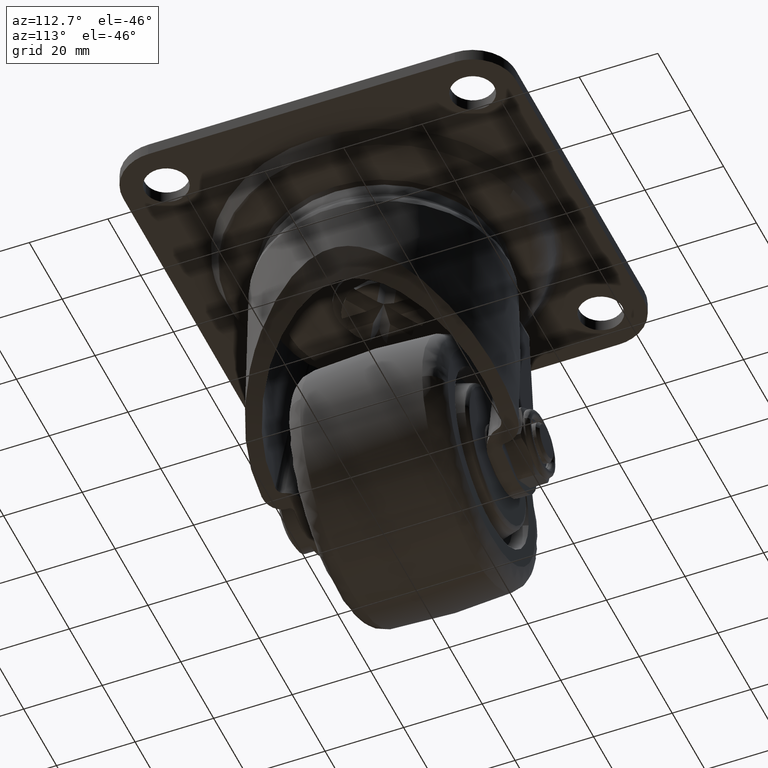
[diagram: clean part render]
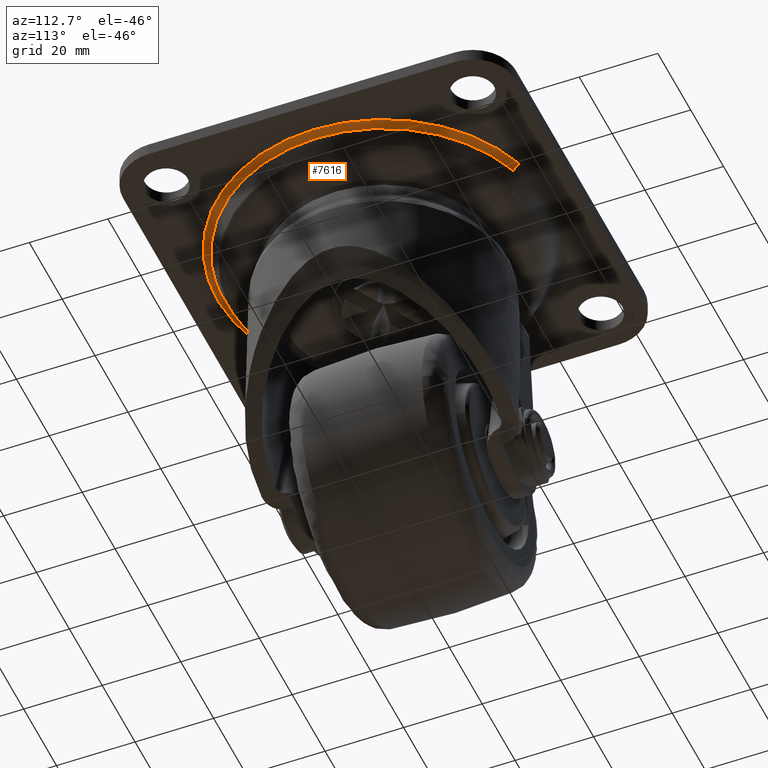
[diagram: same view with one face highlighted and labeled with its STEP entity id]
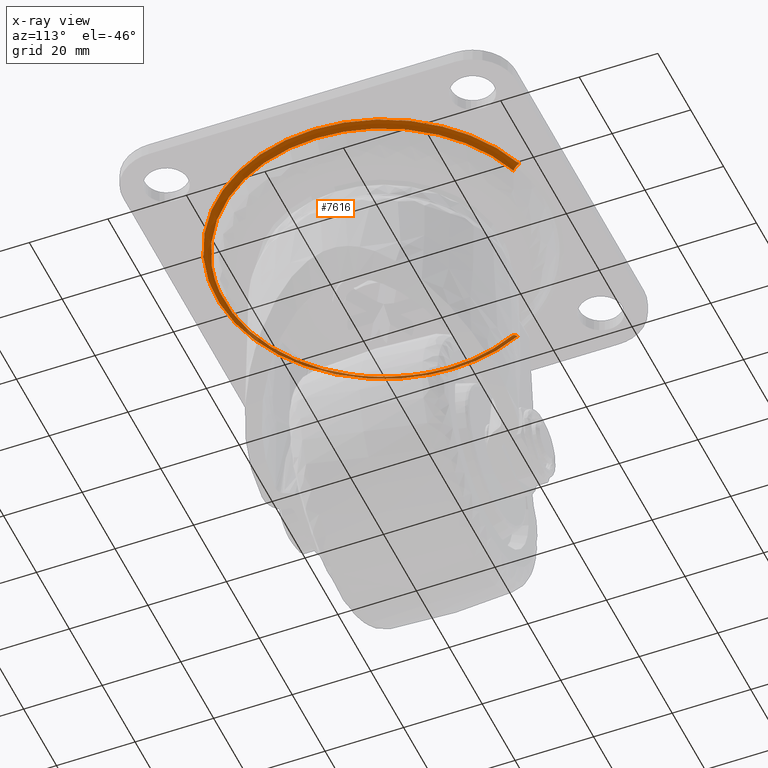
[diagram: x-ray of the same camera — body ghosted, the highlighted face saturated]
A machine part, auxiliary view. The second image highlights one B-rep face of the part: STEP entity #7616.
The next image is the same camera in x-ray: the body ghosted, the highlighted face saturated — about 17% of this face is hidden behind the body in this view.
In plain terms, the highlighted face is a freeform B-spline surface patch.
Its self-contained STEP definition (entity closure, byte-faithful):
#5786=CARTESIAN_POINT('',(3.184360529721399,-40.461136844316677,-4.345675039741233));
#5787=VERTEX_POINT('',#5786);
#5793=CARTESIAN_POINT('',(-37.739710467579357,-14.931778210949810,-4.345675039742618));
#5794=VERTEX_POINT('',#5793);
#5795=CARTESIAN_POINT('',(3.184360529721399,-40.461136844316677,-4.345675039741233));
#5796=CARTESIAN_POINT('',(1.594638133456213,-40.586250710279998,-4.345675039742931));
#5797=CARTESIAN_POINT('',(0.0,-40.586250710279998,-4.345675039742931));
#5798=CARTESIAN_POINT('',(-27.589476437351475,-40.586250710280005,-4.345675039742930));
#5799=CARTESIAN_POINT('',(-37.739710467579364,-14.931778210949812,-4.345675039742617));
#5807=(BOUNDED_CURVE()B_SPLINE_CURVE(2,(#5795,#5796,#5797,#5798,#5799),.UNSPECIFIED.,.F.,.U.)B_SPLINE_CURVE_WITH_KNOTS((3,2,3),(0.736331300632689,0.750000000000000,0.937532549939446),.UNSPECIFIED.)CURVE()GEOMETRIC_REPRESENTATION_ITEM()RATIONAL_B_SPLINE_CURVE((0.969723356171653,0.983986122581260,1.0,0.780291951263764,0.890203187501340))REPRESENTATION_ITEM(''));
#5808=EDGE_CURVE('',#5787,#5794,#5807,.T.);
#5860=CARTESIAN_POINT('',(-40.586250710279998,0.0,-4.345675039742931));
#5861=VERTEX_POINT('',#5860);
#5862=CARTESIAN_POINT('',(-37.739710467579357,-14.931778210949812,-4.345675039742618));
#5863=CARTESIAN_POINT('',(-40.586250710279998,-7.737216178475551,-4.345675039742932));
#5864=CARTESIAN_POINT('',(-40.586250710279998,0.0,-4.345675039742931));
#5872=(BOUNDED_CURVE()B_SPLINE_CURVE(2,(#5862,#5863,#5864),.UNSPECIFIED.,.F.,.U.)B_SPLINE_CURVE_WITH_KNOTS((3,3),(0.937532549939447,1.0),.UNSPECIFIED.)CURVE()GEOMETRIC_REPRESENTATION_ITEM()RATIONAL_B_SPLINE_CURVE((0.890203187501341,0.926814829922784,1.0))REPRESENTATION_ITEM(''));
#5873=EDGE_CURVE('',#5794,#5861,#5872,.T.);
#5875=CARTESIAN_POINT('',(-36.723537601635847,17.280785075132290,-4.345675037813947));
#5876=VERTEX_POINT('',#5875);
#5877=CARTESIAN_POINT('',(-40.586250710279998,0.0,-4.345675039742931));
#5878=CARTESIAN_POINT('',(-40.586250710279998,9.072101875295861,-4.345675039742931));
#5879=CARTESIAN_POINT('',(-36.723537601635861,17.280785075132297,-4.345675037813947));
#5887=(BOUNDED_CURVE()B_SPLINE_CURVE(2,(#5877,#5878,#5879),.UNSPECIFIED.,.F.,.U.)B_SPLINE_CURVE_WITH_KNOTS((3,3),(0.0,0.072331535363854),.UNSPECIFIED.)CURVE()GEOMETRIC_REPRESENTATION_ITEM()RATIONAL_B_SPLINE_CURVE((1.0,0.915258335142247,0.879552628112097))REPRESENTATION_ITEM(''));
#5888=EDGE_CURVE('',#5861,#5876,#5887,.T.);
#5890=CARTESIAN_POINT('',(12.924949974831859,38.473229847153888,-4.345675039582929));
#5891=VERTEX_POINT('',#5890);
#5907=CARTESIAN_POINT('',(40.586250710279998,0.0,-4.345675039742931));
#5908=VERTEX_POINT('',#5907);
#5909=CARTESIAN_POINT('',(12.924949974831856,38.473229847153888,-4.345675039582929));
#5910=CARTESIAN_POINT('',(40.586250710279998,29.180510476621155,-4.345675039742931));
#5911=CARTESIAN_POINT('',(40.586250710279998,0.0,-4.345675039742931));
#5919=(BOUNDED_CURVE()B_SPLINE_CURVE(2,(#5909,#5910,#5911),.UNSPECIFIED.,.F.,.U.)B_SPLINE_CURVE_WITH_KNOTS((3,3),(0.304134442289154,0.500000000000000),.UNSPECIFIED.)CURVE()GEOMETRIC_REPRESENTATION_ITEM()RATIONAL_B_SPLINE_CURVE((0.900621820758409,0.770529225389513,1.0))REPRESENTATION_ITEM(''));
#5920=EDGE_CURVE('',#5891,#5908,#5919,.T.);
#5922=CARTESIAN_POINT('',(40.586250710279998,0.0,-4.345675039742931));
#5923=CARTESIAN_POINT('',(40.586250710279984,-37.517544248621746,-4.345675039742932));
#5924=CARTESIAN_POINT('',(3.184360529721399,-40.461136844316677,-4.345675039741233));
#5932=(BOUNDED_CURVE()B_SPLINE_CURVE(2,(#5922,#5923,#5924),.UNSPECIFIED.,.F.,.U.)B_SPLINE_CURVE_WITH_KNOTS((3,3),(0.500000000000000,0.736331300632688),.UNSPECIFIED.)CURVE()GEOMETRIC_REPRESENTATION_ITEM()RATIONAL_B_SPLINE_CURVE((1.0,0.723120658605289,0.969723356171652))REPRESENTATION_ITEM(''));
#5933=EDGE_CURVE('',#5908,#5787,#5932,.T.);
#7499=CARTESIAN_POINT('',(12.911361640842289,38.432767590727636,-4.442584649837850));
#7500=CARTESIAN_POINT('',(15.137609394002512,37.684866993267164,-4.442584649837849));
#7501=CARTESIAN_POINT('',(17.262611544688397,36.684916883655177,-4.442584649837849));
#7502=CARTESIAN_POINT('',(53.947528428343588,19.422305338966794,-4.442584649837850));
#7503=CARTESIAN_POINT('',(36.684916883655177,-17.262611544688397,-4.442584649837849));
#7504=CARTESIAN_POINT('',(19.422305338966794,-53.947528428343588,-4.442584649837850));
#7505=CARTESIAN_POINT('',(-17.262611544688397,-36.684916883655198,-4.442584649837849));
#7506=CARTESIAN_POINT('',(-53.947528428343588,-19.422305338966794,-4.442584649837850));
#7507=CARTESIAN_POINT('',(-36.684916883655198,17.262611544688387,-4.442584649837849));
#7508=CARTESIAN_POINT('',(13.082746214018513,38.942921643626420,-3.127356913114888));
#7509=CARTESIAN_POINT('',(15.338545034802220,38.185093462364996,-3.127356913114887));
#7510=CARTESIAN_POINT('',(17.491754325581045,37.171870080150107,-3.127356913114887));
#7511=CARTESIAN_POINT('',(54.663624405731149,19.680115754569073,-3.127356913114888));
#7512=CARTESIAN_POINT('',(37.171870080150107,-17.491754325581045,-3.127356913114887));
#7513=CARTESIAN_POINT('',(19.680115754569073,-54.663624405731149,-3.127356913114888));
#7514=CARTESIAN_POINT('',(-17.491754325581045,-37.171870080150107,-3.127356913114887));
#7515=CARTESIAN_POINT('',(-54.663624405731149,-19.680115754569073,-3.127356913114888));
#7516=CARTESIAN_POINT('',(-37.171870080150107,17.491754325581031,-3.127356913114887));
#7517=CARTESIAN_POINT('',(13.534658132544960,40.288110959776169,-3.202823135145509));
#7518=CARTESIAN_POINT('',(15.868378083665794,39.504105431518568,-3.202823135145508));
#7519=CARTESIAN_POINT('',(18.095964796865463,38.455882690983799,-3.202823135145509));
#7520=CARTESIAN_POINT('',(56.551847487849265,20.359917894118340,-3.202823135145508));
#7521=CARTESIAN_POINT('',(38.455882690983799,-18.095964796865463,-3.202823135145509));
#7522=CARTESIAN_POINT('',(20.359917894118340,-56.551847487849265,-3.202823135145508));
#7523=CARTESIAN_POINT('',(-18.095964796865463,-38.455882690983813,-3.202823135145509));
#7524=CARTESIAN_POINT('',(-56.551847487849265,-20.359917894118340,-3.202823135145508));
#7525=CARTESIAN_POINT('',(-38.455882690983813,18.095964796865463,-3.202823135145509));
#7533=(BOUNDED_SURFACE()B_SPLINE_SURFACE(2,2,((#7499,#7508,#7517),(#7500,#7509,#7518),(#7501,#7510,#7519),(#7502,#7511,#7520),(#7503,#7512,#7521),(#7504,#7513,#7522),(#7505,#7514,#7523),(#7506,#7515,#7524),(#7507,#7516,#7525)),.UNSPECIFIED.,.F.,.F.,.U.)B_SPLINE_SURFACE_WITH_KNOTS((3,2,2,2,3),(3,3),(0.0,5.633406447499186,76.051054196741092,146.468701945983010,216.886349695224910),(0.0,2.552755834248825),.UNSPECIFIED.)GEOMETRIC_REPRESENTATION_ITEM()RATIONAL_B_SPLINE_SURFACE(((0.882743010079175,0.718345369103634,0.879689486812176),(0.900900351951463,0.733121178484464,0.897784020069453),(0.922516231206186,0.750711424552048,0.919325127177030),(0.652317482840551,0.530833139014967,0.650061031542063),(0.922516231206186,0.750711424552048,0.919325127177030),(0.652317482840551,0.530833139014967,0.650061031542063),(0.922516231206186,0.750711424552048,0.919325127177030),(0.652317482840551,0.530833139014967,0.650061031542063),(0.922516231206186,0.750711424552048,0.919325127177030)))REPRESENTATION_ITEM('')SURFACE());
#7534=ORIENTED_EDGE('',*,*,#5920,.F.);
#7535=CARTESIAN_POINT('',(13.500830320803569,40.187431987780762,-3.200000500000001));
#7536=VERTEX_POINT('',#7535);
#7537=CARTESIAN_POINT('',(12.924949974831851,38.473229847153888,-4.345675039582929));
#7538=CARTESIAN_POINT('',(13.097316248500098,38.986306282867474,-3.200001000543467));
#7539=CARTESIAN_POINT('',(13.500830320803566,40.187431987780755,-3.200000500000001));
#7547=(BOUNDED_CURVE()B_SPLINE_CURVE(2,(#7537,#7538,#7539),.UNSPECIFIED.,.F.,.U.)B_SPLINE_CURVE_WITH_KNOTS((3,3),(-1.661306528936772,-0.352191795763833),.UNSPECIFIED.)CURVE()GEOMETRIC_REPRESENTATION_ITEM()RATIONAL_B_SPLINE_CURVE((0.868483052277219,0.732466660015855,0.865706740012012))REPRESENTATION_ITEM(''));
#7548=EDGE_CURVE('',#5891,#7536,#7547,.T.);
#7549=ORIENTED_EDGE('',*,*,#7548,.T.);
#7550=CARTESIAN_POINT('',(42.394599999999997,0.0,-3.200000000000000));
#7551=VERTEX_POINT('',#7550);
#7552=CARTESIAN_POINT('',(13.500830320803567,40.187431987780755,-3.200000500000000));
#7553=CARTESIAN_POINT('',(42.394600000000004,30.480668891590831,-3.200000000000000));
#7554=CARTESIAN_POINT('',(42.394599999999997,0.0,-3.200000000000000));
#7562=(BOUNDED_CURVE()B_SPLINE_CURVE(2,(#7552,#7553,#7554),.UNSPECIFIED.,.F.,.U.)B_SPLINE_CURVE_WITH_KNOTS((3,3),(0.304134442289279,0.500000000000000),.UNSPECIFIED.)CURVE()GEOMETRIC_REPRESENTATION_ITEM()RATIONAL_B_SPLINE_CURVE((0.900621820758243,0.770529225389660,1.0))REPRESENTATION_ITEM(''));
#7563=EDGE_CURVE('',#7536,#7551,#7562,.T.);
#7564=ORIENTED_EDGE('',*,*,#7563,.T.);
#7565=CARTESIAN_POINT('',(-42.394599999999997,0.0,-3.200000000000000));
#7566=VERTEX_POINT('',#7565);
#7567=CARTESIAN_POINT('',(42.394599999999997,0.0,-3.200000000000000));
#7568=CARTESIAN_POINT('',(42.394600000000004,-42.394600000000004,-3.200000000000000));
#7569=CARTESIAN_POINT('',(0.0,-42.394599999999997,-3.200000000000000));
#7570=CARTESIAN_POINT('',(-42.394600000000004,-42.394600000000004,-3.200000000000000));
#7571=CARTESIAN_POINT('',(-42.394599999999997,0.0,-3.200000000000000));
#7579=(BOUNDED_CURVE()B_SPLINE_CURVE(2,(#7567,#7568,#7569,#7570,#7571),.UNSPECIFIED.,.F.,.U.)B_SPLINE_CURVE_WITH_KNOTS((3,2,3),(0.500000000000000,0.750000000000000,1.0),.UNSPECIFIED.)CURVE()GEOMETRIC_REPRESENTATION_ITEM()RATIONAL_B_SPLINE_CURVE((1.0,0.707106781186548,1.0,0.707106781186548,1.0))REPRESENTATION_ITEM(''));
#7580=EDGE_CURVE('',#7551,#7566,#7579,.T.);
#7581=ORIENTED_EDGE('',*,*,#7580,.T.);
#7582=CARTESIAN_POINT('',(-38.359780954483568,18.050742752421879,-3.200000500000000));
#7583=VERTEX_POINT('',#7582);
#7584=CARTESIAN_POINT('',(-42.394599999999997,0.0,-3.200000000000000));
#7585=CARTESIAN_POINT('',(-42.394599999999997,9.476315831941585,-3.200000000000000));
#7586=CARTESIAN_POINT('',(-38.359780954483568,18.050742752421879,-3.200000500000001));
#7594=(BOUNDED_CURVE()B_SPLINE_CURVE(2,(#7584,#7585,#7586),.UNSPECIFIED.,.F.,.U.)B_SPLINE_CURVE_WITH_KNOTS((3,3),(0.0,0.072331535364294),.UNSPECIFIED.)CURVE()GEOMETRIC_REPRESENTATION_ITEM()RATIONAL_B_SPLINE_CURVE((1.0,0.915258335141731,0.879552628111663))REPRESENTATION_ITEM(''));
#7595=EDGE_CURVE('',#7566,#7583,#7594,.T.);
#7596=ORIENTED_EDGE('',*,*,#7595,.T.);
#7597=CARTESIAN_POINT('',(-36.723537601635854,17.280785075132300,-4.345675037813947));
#7598=CARTESIAN_POINT('',(-37.213280257476150,17.511240475909357,-3.200001005528232));
#7599=CARTESIAN_POINT('',(-38.359780954483568,18.050742752421879,-3.200000500000000));
#7607=(BOUNDED_CURVE()B_SPLINE_CURVE(2,(#7597,#7598,#7599),.UNSPECIFIED.,.F.,.U.)B_SPLINE_CURVE_WITH_KNOTS((3,3),(-1.661306526540072,-0.352191800567665),.UNSPECIFIED.)CURVE()GEOMETRIC_REPRESENTATION_ITEM()RATIONAL_B_SPLINE_CURVE((0.907613806145886,0.765469000787573,0.904712402632706))REPRESENTATION_ITEM(''));
#7608=EDGE_CURVE('',#5876,#7583,#7607,.T.);
#7609=ORIENTED_EDGE('',*,*,#7608,.F.);
#7610=ORIENTED_EDGE('',*,*,#5888,.F.);
#7611=ORIENTED_EDGE('',*,*,#5873,.F.);
#7612=ORIENTED_EDGE('',*,*,#5808,.F.);
#7613=ORIENTED_EDGE('',*,*,#5933,.F.);
#7614=EDGE_LOOP('',(#7534,#7549,#7564,#7581,#7596,#7609,#7610,#7611,#7612,#7613));
#7615=FACE_OUTER_BOUND('',#7614,.T.);
#7616=ADVANCED_FACE('',(#7615),#7533,.F.);